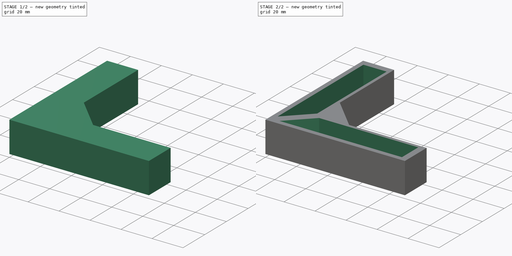
[diagram: build sequence overview — one tinted view per stage of 2, left to right]
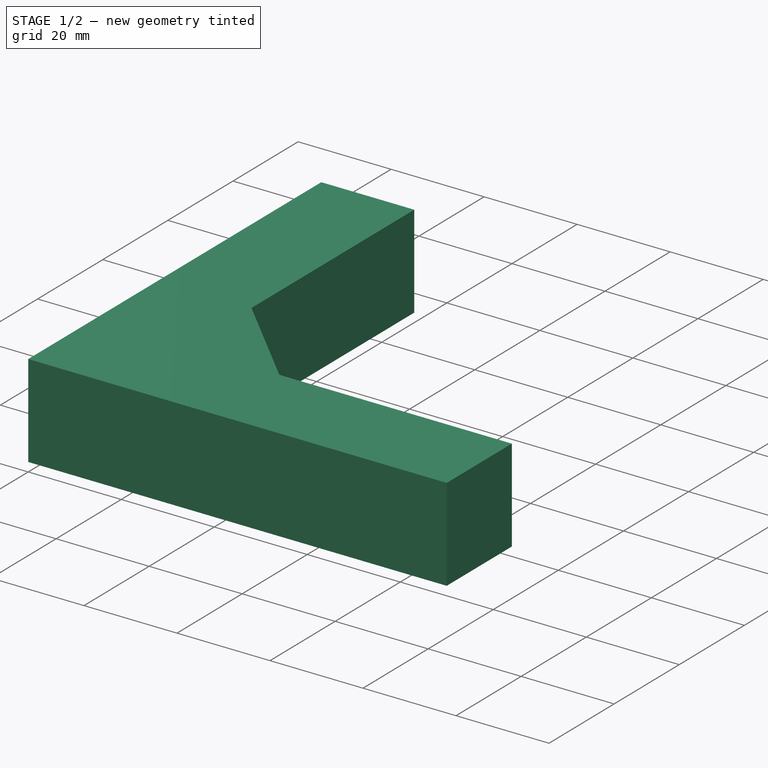
[diagram: stage 1 of 2 — iso view after this stage's code; geometry added in this stage tinted green]
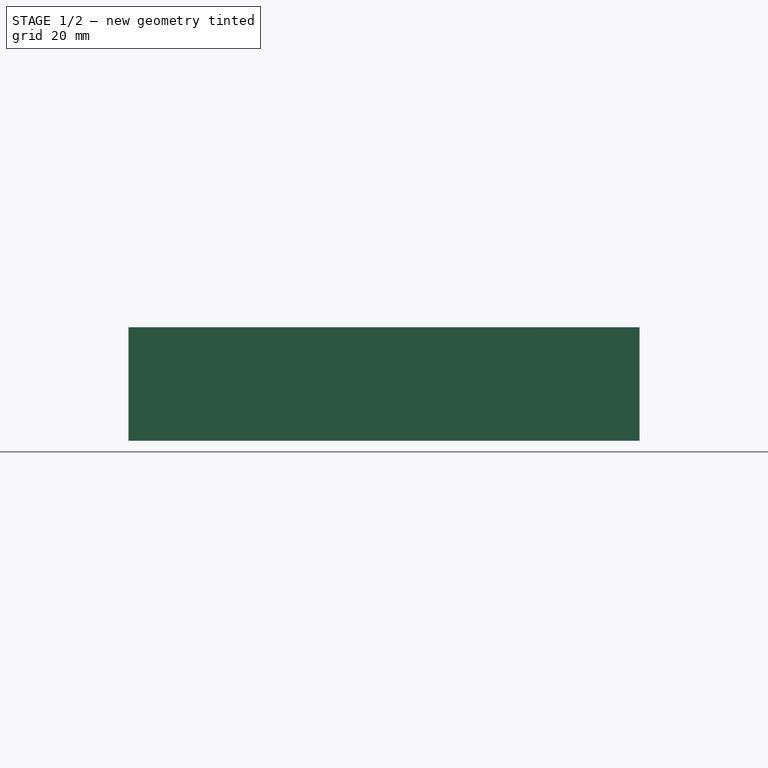
[diagram: stage 1 of 2 — front view after this stage's code; geometry added in this stage tinted green]
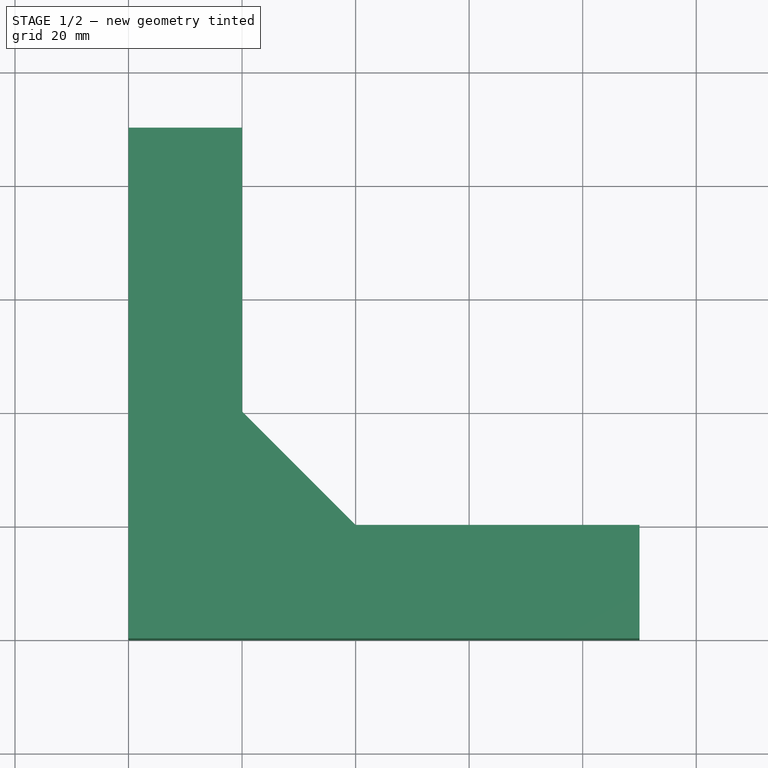
[diagram: stage 1 of 2 — top view after this stage's code; geometry added in this stage tinted green]
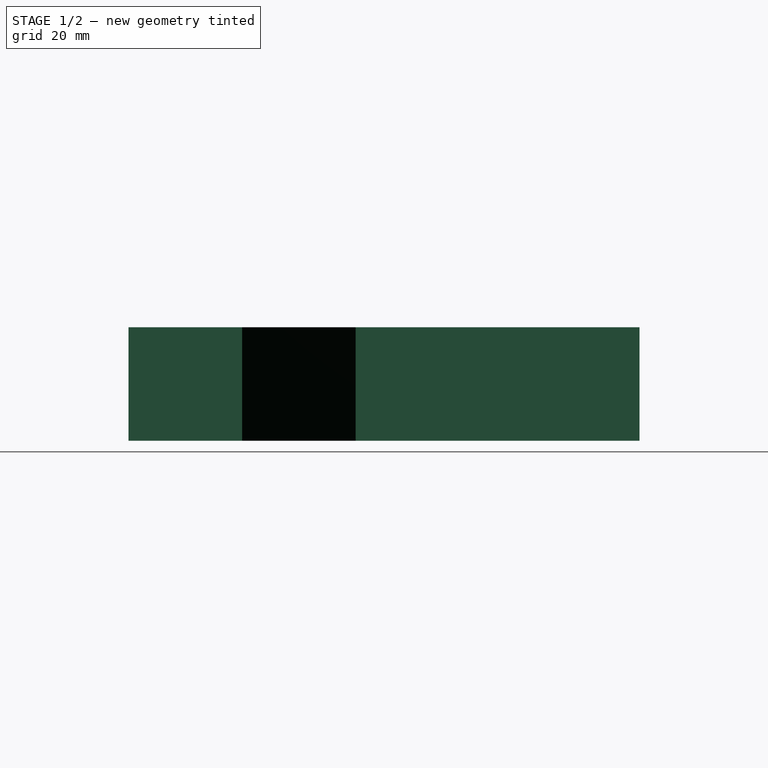
[diagram: stage 1 of 2 — right view after this stage's code; geometry added in this stage tinted green]
FCSTD DOCUMENT  (FreeCAD 0.14R2800 (Git))
Label: right_angle_support
License: CC-BY 3.0
LicenseURL: http://creativecommons.org/licenses/by/3.0/
objects: Sketcher::SketchObject×2, PartDesign::Pad×1, PartDesign::Pocket×1
note: 6 computed .brp shape members not serialized (recipe doc carries the construction recipe); baked Part::Feature solids carry a one-line shape summary decoded from their .brp

FEATURE [Sketcher::SketchObject] Sketch
  sketch-geometry (7):
    g0: LineSegment StartX=0 StartY=0 StartZ=0 EndX=0 EndY=90 EndZ=0
    g1: LineSegment StartX=0 StartY=90 StartZ=0 EndX=20 EndY=90 EndZ=0
    g2: LineSegment StartX=20 StartY=90 StartZ=0 EndX=20 EndY=40 EndZ=0
    g3: LineSegment StartX=20 StartY=40 StartZ=0 EndX=40 EndY=20 EndZ=0
    g4: LineSegment StartX=40 StartY=20 StartZ=0 EndX=90 EndY=20 EndZ=0
    g5: LineSegment StartX=90 StartY=20 StartZ=0 EndX=90 EndY=0 EndZ=0
    g6: LineSegment StartX=90 StartY=0 StartZ=0 EndX=0 EndY=0 EndZ=0
  constraints (20):
    c: Vertical(g0)
    c: Coincident(g0,g1)
    c: Horizontal(g1)
    c: Coincident(g1,g2)
    c: Vertical(g2)
    c: Coincident(g2,g3)
    c: Coincident(g3,g4)
    c: Horizontal(g4)
    c: Coincident(g4,g5)
    c: PointOnObject(g5,g-1)
    c: Vertical(g5)
    c: Coincident(g5,g6)
    c: Coincident(g6,g-1)
    c: Angle(g4,g3) = 2.35619
    c: DistanceY(g-1,g0) = 90
    c: DistanceX(g-1,g5) = 90
    c: Distance(g1) = 20
    c: Coincident(g0,g-1)
    c: Distance(g5) = 20
    c: DistanceX(g2,g3) = 20
FEATURE [PartDesign::Pad] Pad
  Length = 20
  Length2 = 100
  Sketch = -> Sketch
  Type = 0
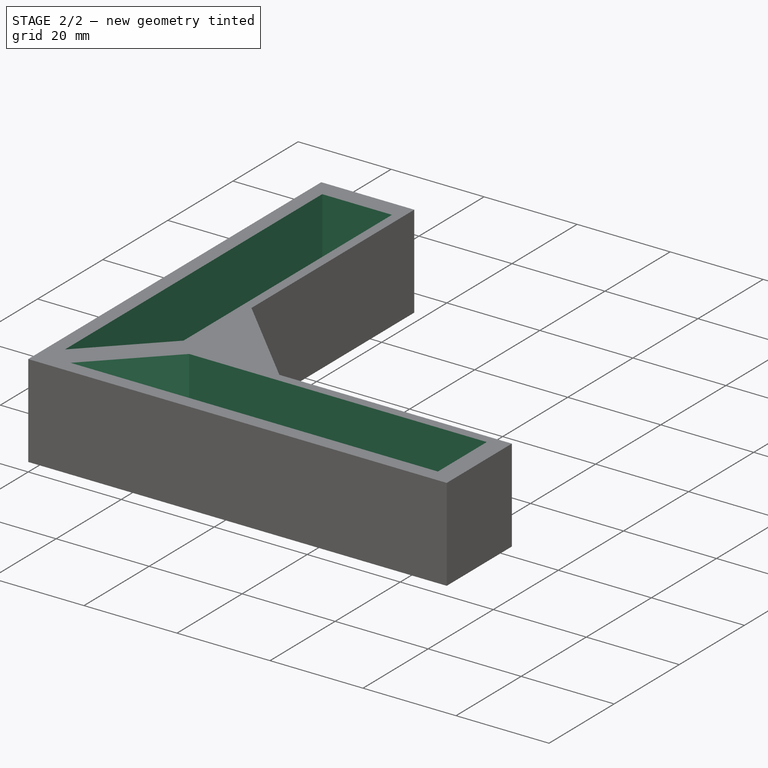
[diagram: stage 2 of 2 — iso view after this stage's code; geometry added in this stage tinted green]
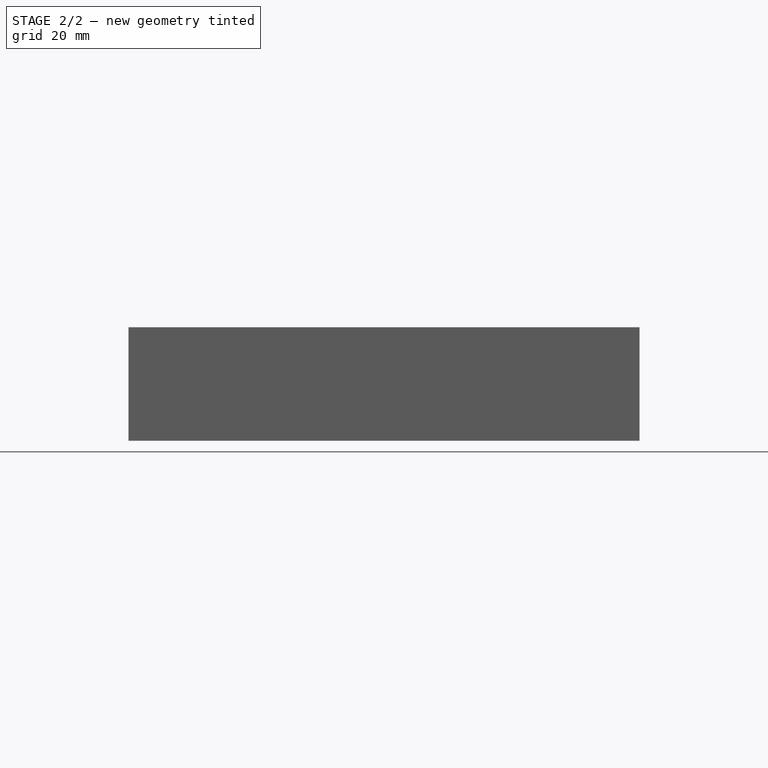
[diagram: stage 2 of 2 — front view after this stage's code; geometry added in this stage tinted green]
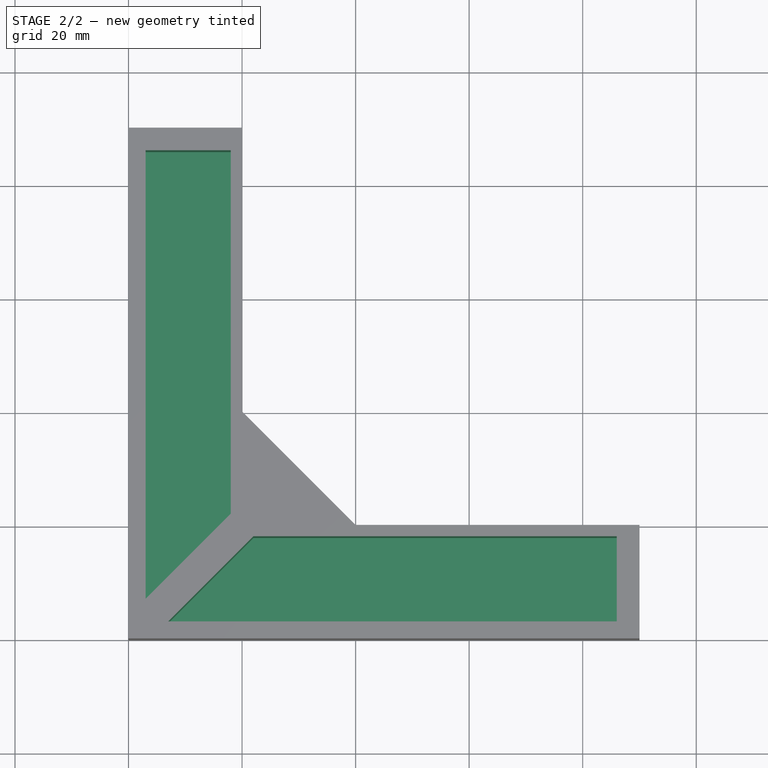
[diagram: stage 2 of 2 — top view after this stage's code; geometry added in this stage tinted green]
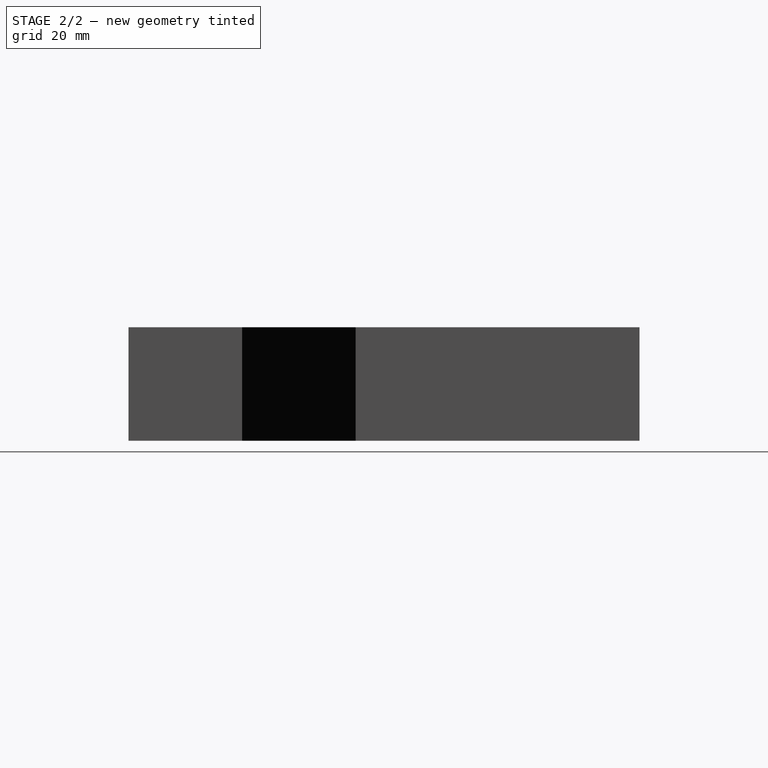
[diagram: stage 2 of 2 — right view after this stage's code; geometry added in this stage tinted green]
FEATURE [Sketcher::SketchObject] Sketch001
  Placement = pos=(0,0,20) rot=(0,0,1;0rad)
  Support = -> Pad [Face9]
  sketch-geometry (8):
    g0: LineSegment StartX=3 StartY=7 StartZ=0 EndX=3 EndY=86 EndZ=0
    g1: LineSegment StartX=3 StartY=86 StartZ=0 EndX=18 EndY=86 EndZ=0
    g2: LineSegment StartX=18 StartY=86 StartZ=0 EndX=18 EndY=22 EndZ=0
    g3: LineSegment StartX=22 StartY=18 StartZ=0 EndX=86 EndY=18 EndZ=0
    g4: LineSegment StartX=86 StartY=18 StartZ=0 EndX=86 EndY=3 EndZ=0
    g5: LineSegment StartX=86 StartY=3 StartZ=0 EndX=7 EndY=3 EndZ=0
    g6: LineSegment StartX=18 StartY=22 StartZ=0 EndX=3 EndY=7 EndZ=0
    g7: LineSegment StartX=22 StartY=18 StartZ=0 EndX=7 EndY=3 EndZ=0
  constraints (24):
    c: Vertical(g0)
    c: Coincident(g0,g1)
    c: Coincident(g1,g2)
    c: Vertical(g2)
    c: Horizontal(g3)
    c: Coincident(g3,g4)
    c: Coincident(g4,g5)
    c: Horizontal(g5)
    c: Horizontal(g1)
    c: Vertical(g4)
    c: DistanceY(g-1,g3) = 18
    c: DistanceX(g-1,g4) = 86
    c: DistanceY(g-1,g0) = 86
    c: DistanceX(g-1,g1) = 18
    c: Coincident(g6,g2)
    c: Coincident(g5,g7)
    c: Coincident(g0,g6)
    c: Parallel(g6,g7)
    c: DistanceY(g-1,g4) = 3
    c: DistanceX(g-1,g0) = 3
    c: Coincident(g7,g3)
    c: DistanceX(g-1,g5) = 7
    c: DistanceY(g-1,g0) = 7
    c: Angle(g7,g3) = 2.35619
FEATURE [PartDesign::Pocket] Pocket
  Length = 18
  Sketch = -> Sketch001
  Type = 0
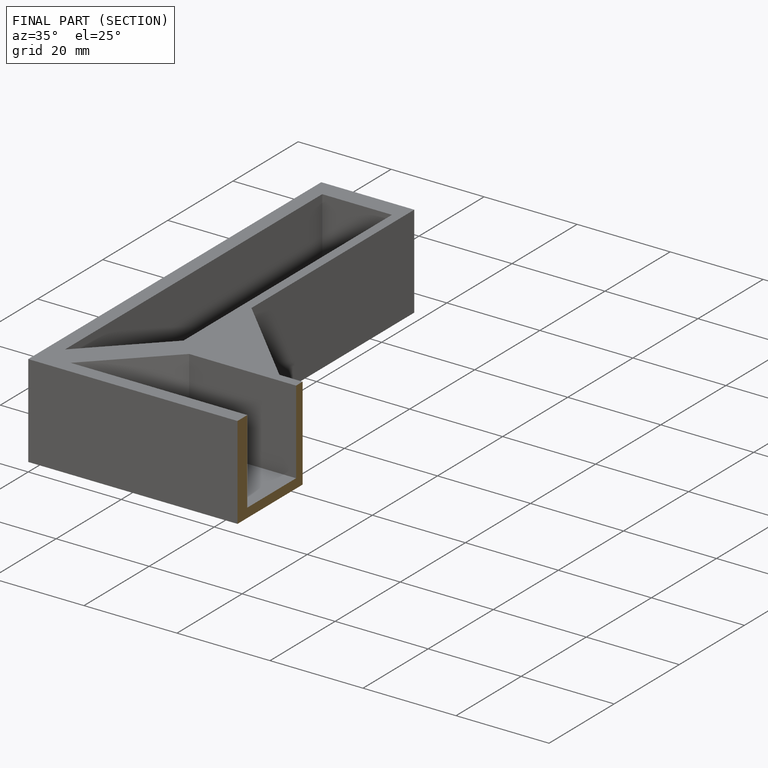
[diagram: finished part — half-section view (interior)]
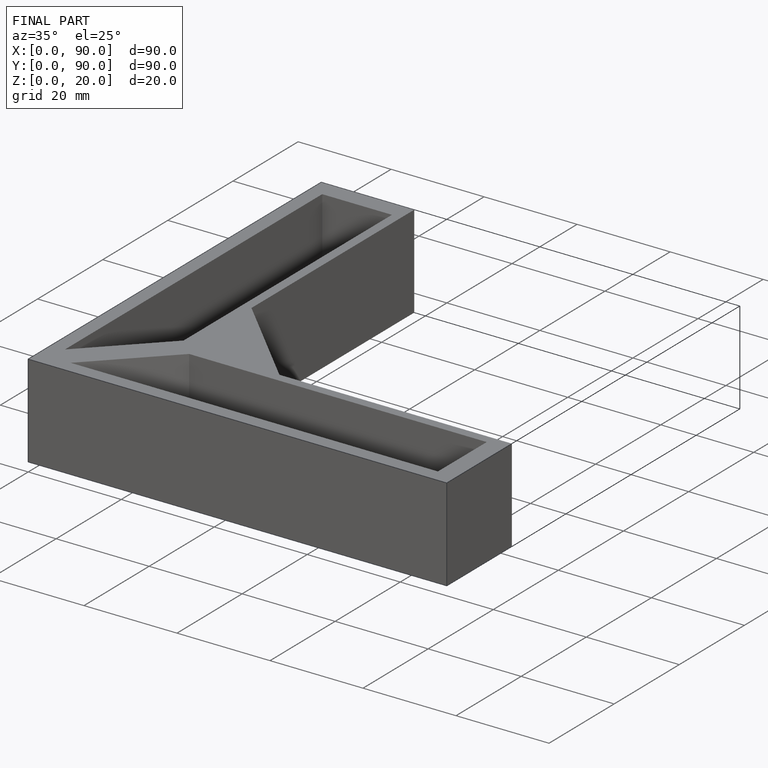
[diagram: finished part — iso view with bounding-box wireframe]
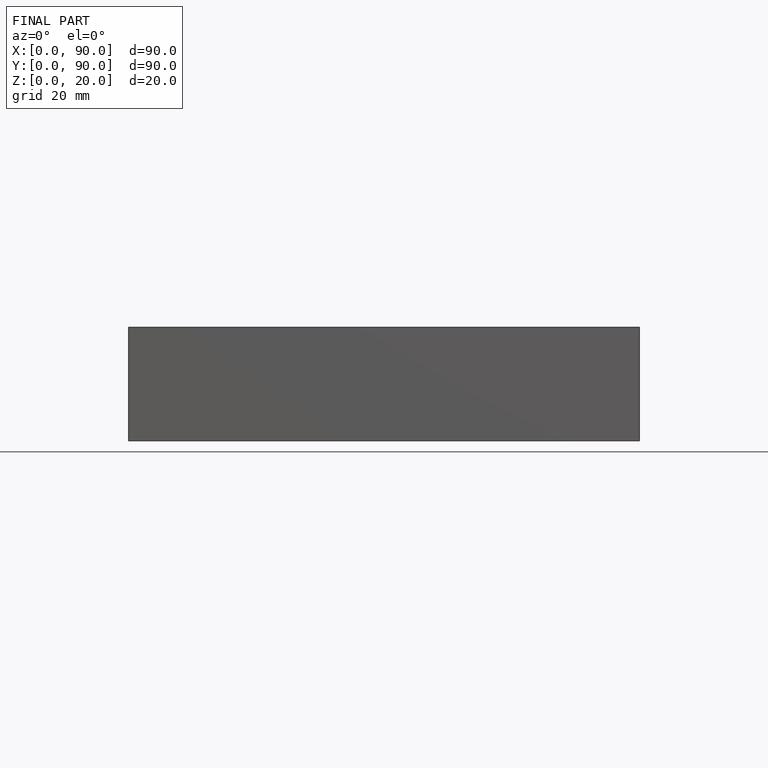
[diagram: finished part — front view with bounding-box wireframe]
